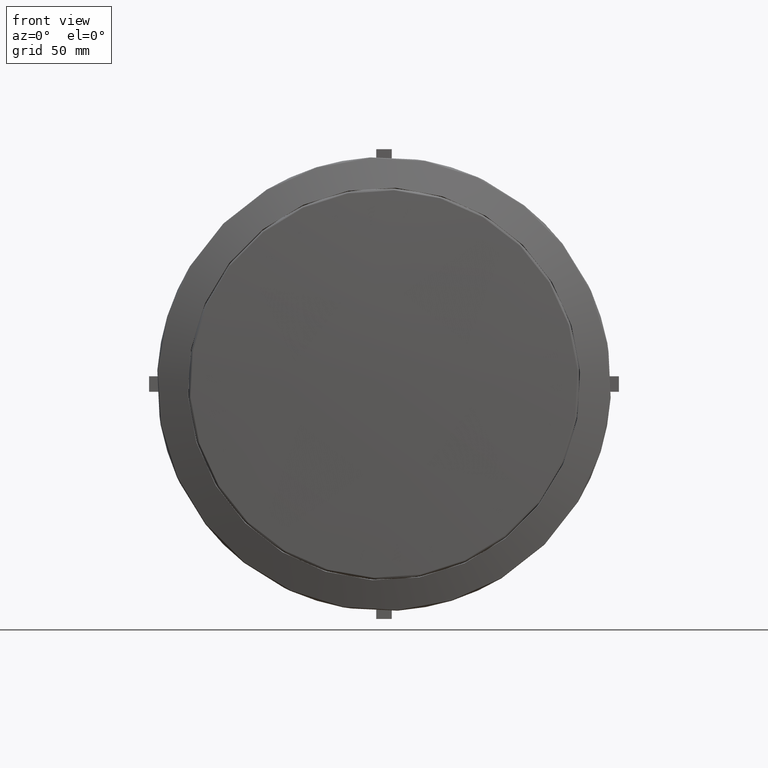
[diagram: clean part render]
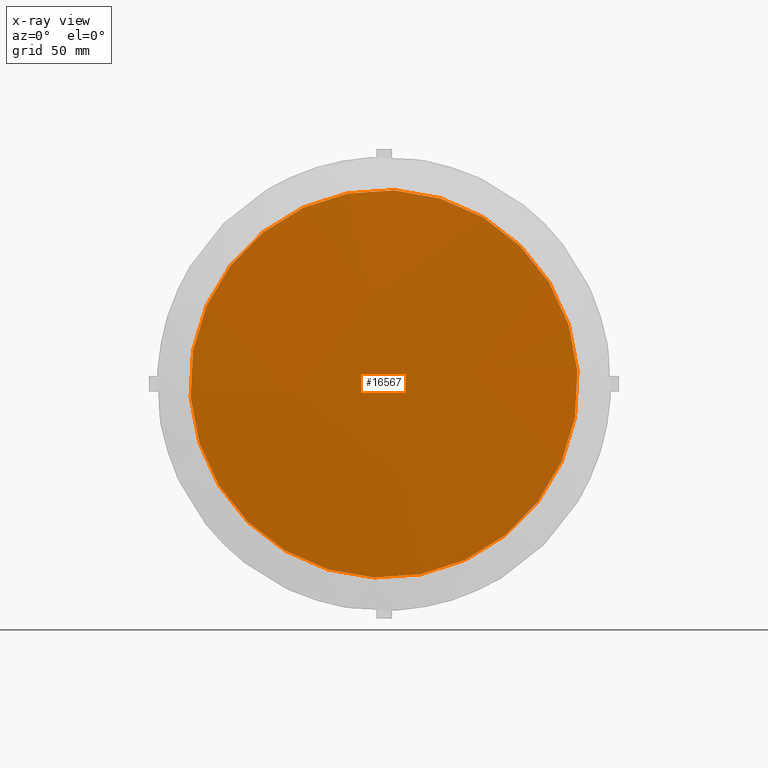
[diagram: x-ray — body ghosted, one internal face saturated and labeled with its STEP entity id]
A machine part, front view, then the same camera in x-ray: the body is ghosted and one INTERNAL B-rep face — a face not visible from any outside direction — is saturated and labeled: STEP entity #16567.
In plain terms, the highlighted face is a freeform B-spline surface patch.
Its self-contained STEP definition (entity closure, byte-faithful):
#995 = VERTEX_POINT ( 'NONE', #17300 ) ;
#2049 = CARTESIAN_POINT ( 'NONE',  ( -66.41397409311056776, -19.30003123186578406, 99.09807017594479817 ) ) ;
#2261 = CARTESIAN_POINT ( 'NONE',  ( -52.96380402278265365, -24.68665351140886344, -6.499345987410412917 ) ) ;
#2623 = ORIENTED_EDGE ( 'NONE', *, *, #9254, .T. ) ;
#3715 = CARTESIAN_POINT ( 'NONE',  ( 52.72729045764479139, -24.69108155378877711, 7.287919333392851584 ) ) ;
#5527 = ORIENTED_EDGE ( 'NONE', *, *, #16416, .T. ) ;
#6407 = EDGE_LOOP ( 'NONE', ( #5527, #2623 ) ) ;
#7151 = CARTESIAN_POINT ( 'NONE',  ( 157.8467461052597969, -13.96711486544737646, 21.27190381028670885 ) ) ;
#7372 = CARTESIAN_POINT ( 'NONE',  ( 112.2236357411237151, -19.34756243169858791, -38.55991059902935092 ) ) ;
#7480 = CARTESIAN_POINT ( 'NONE',  ( 66.18010967083820617, -19.35896650884502890, -98.31153825706151395 ) ) ;
#7631 = CARTESIAN_POINT ( 'NONE',  ( 0.0000000000000000000, -18.10362026174004768, 1.283914725491116015E-14 ) ) ;
#7917 = CARTESIAN_POINT ( 'NONE',  ( 0.0000000000000000000, -18.10362026174004768, 1.283914725491116015E-14 ) ) ;
#8812 = CARTESIAN_POINT ( 'NONE',  ( 6.683335059336005912, -24.70252418998436639, -52.46337748485239416 ) ) ;
#9037 = CARTESIAN_POINT ( 'NONE',  ( -39.34416934592802306, -19.32671138706033176, -111.9856260617839894 ) ) ;
#9254 = EDGE_CURVE ( 'NONE', #995, #12488, #22221, .T. ) ;
#10042 =( BOUNDED_SURFACE ( )  B_SPLINE_SURFACE ( 3, 3, ( 
 ( #12513, #12294, #17453, #7151 ),
 ( #2049, #10835, #3715, #7372 ),
 ( #20397, #2261, #8812, #7480 ),
 ( #19369, #19264, #9037, #17336 ) ),
 .UNSPECIFIED., .F., .F., .T. ) 
 B_SPLINE_SURFACE_WITH_KNOTS ( ( 4, 4 ),
 ( 4, 4 ),
 ( 0.0000000000000000000, 1.000000000000000000 ),
 ( 0.0000000000000000000, 1.000000000000000000 ),
 .UNSPECIFIED. ) 
 GEOMETRIC_REPRESENTATION_ITEM ( )  RATIONAL_B_SPLINE_SURFACE ( (
 ( 1.000000000000000000, 0.9983094000226921949, 0.9983094000226921949, 1.000000000000000000),
 ( 0.9983006172079941232, 0.9966128902071959006, 0.9966128902071959006, 0.9983006172079941232),
 ( 0.9983006172079941232, 0.9966128902071959006, 0.9966128902071959006, 0.9983006172079941232),
 ( 1.000000000000000000, 0.9983094000226921949, 0.9983094000226921949, 1.000000000000000000) ) ) 
 REPRESENTATION_ITEM ( '' )  SURFACE ( )  );
#10835 = CARTESIAN_POINT ( 'NONE',  ( -6.919418211422354581, -24.67521098973590554, 53.25161915492614639 ) ) ;
#11015 = DIRECTION ( 'NONE',  ( -0.0000000000000000000, 1.000000000000000000, -0.0000000000000000000 ) ) ;
#11541 = FACE_OUTER_BOUND ( 'NONE', #6407, .T. ) ;
#12294 = CARTESIAN_POINT ( 'NONE',  ( 39.10931829097378909, -19.27662528249441465, 112.7708584285009437 ) ) ;
#12488 = VERTEX_POINT ( 'NONE', #12492 ) ;
#12492 = CARTESIAN_POINT ( 'NONE',  ( 87.92308911544510863, -18.10362026174004768, -67.75345305146814212 ) ) ;
#12513 = CARTESIAN_POINT ( 'NONE',  ( -20.18268657200881933, -13.91974548702501480, 158.4612238174692891 ) ) ;
#12569 = AXIS2_PLACEMENT_3D ( 'NONE', #7917, #18490, #13564 ) ;
#13564 = DIRECTION ( 'NONE',  ( 0.7920999019409468156, 0.0000000000000000000, -0.6103914689321454645 ) ) ;
#14280 = CIRCLE ( 'NONE', #19291, 111.0000000000000142 ) ;
#16416 = EDGE_CURVE ( 'NONE', #12488, #995, #14280, .T. ) ;
#16567 = ADVANCED_FACE ( 'NONE', ( #11541 ), #10042, .F. ) ;
#17300 = CARTESIAN_POINT ( 'NONE',  ( -87.92308911544508021, -18.10362026174004768, 67.75345305146817054 ) ) ;
#17336 = CARTESIAN_POINT ( 'NONE',  ( 19.95090462206447413, -14.00126895720906361, -157.6783565003006515 ) ) ;
#17453 = CARTESIAN_POINT ( 'NONE',  ( 98.55295793255906744, -19.29244181473095665, 66.96364341611294435 ) ) ;
#18490 = DIRECTION ( 'NONE',  ( -0.0000000000000000000, 1.000000000000000000, -0.0000000000000000000 ) ) ;
#19264 = CARTESIAN_POINT ( 'NONE',  ( -98.78909803235829656, -19.31089451183975925, -66.17741771260288886 ) ) ;
#19291 = AXIS2_PLACEMENT_3D ( 'NONE', #7631, #11015, #21431 ) ;
#19369 = CARTESIAN_POINT ( 'NONE',  ( -158.0823886519613097, -13.95389855157413983, -20.48606152074426845 ) ) ;
#20397 = CARTESIAN_POINT ( 'NONE',  ( -112.4587892195817460, -19.31143496602517118, 39.34743586344486488 ) ) ;
#21431 = DIRECTION ( 'NONE',  ( 0.7920999019409468156, 0.0000000000000000000, -0.6103914689321454645 ) ) ;
#22221 = CIRCLE ( 'NONE', #12569, 111.0000000000000142 ) ;